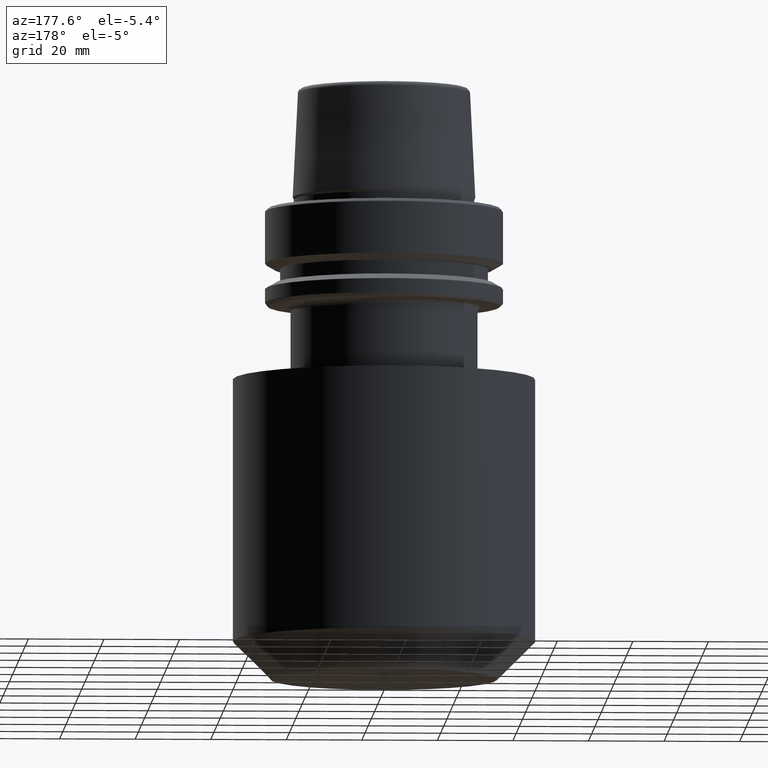
[diagram: clean part render]
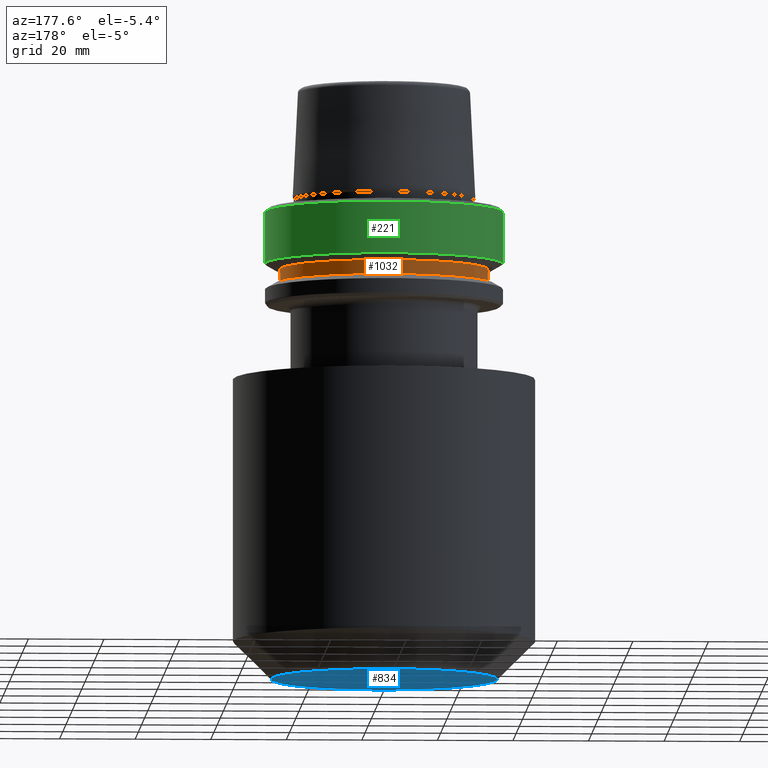
[diagram: same view with three faces highlighted in distinct colors, each labeled with its STEP entity id]
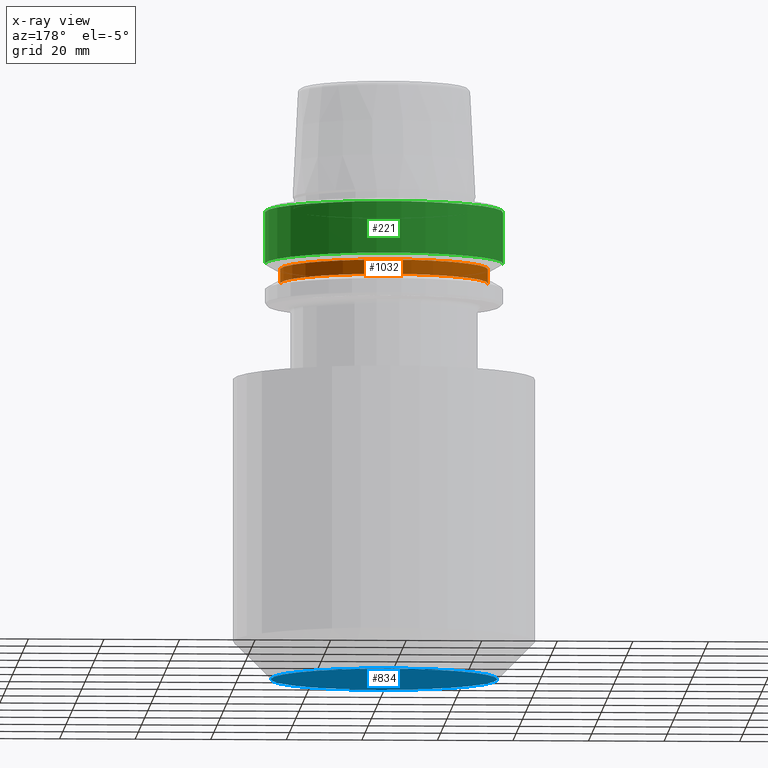
[diagram: x-ray of the same camera — body ghosted, the three highlighted faces saturated]
A machine part, auxiliary view with three faces highlighted in distinct colors.
The next image is the same camera in x-ray (body ghosted, the three faces saturated) — at least one of them is partly hidden behind the body in this view.
Their STEP definitions:

[orange] entity #1032 — the highlighted cylindrical surface (partial cylindrical patch) has radius 27.5 mm, axis along (-0, -0, 1).
#79 = EDGE_CURVE ( 'NONE', #987, #1146, #254, .T. ) ;
#170 = ORIENTED_EDGE ( 'NONE', *, *, #1051, .F. ) ;
#201 = DIRECTION ( 'NONE',  ( 1.000000000000000000, 0.0000000000000000000, 0.0000000000000000000 ) ) ;
#202 = CARTESIAN_POINT ( 'NONE',  ( 0.0000000000000000000, 0.0000000000000000000, -16.10000000000001600 ) ) ;
#226 = CARTESIAN_POINT ( 'NONE',  ( 27.49999999999999600, 0.0000000000000000000, -16.10000000000001600 ) ) ;
#243 = CARTESIAN_POINT ( 'NONE',  ( -27.49999999999999600, 3.367778697655220900E-015, -16.10000000000001600 ) ) ;
#254 = LINE ( 'NONE', #873, #1210 ) ;
#288 = DIRECTION ( 'NONE',  ( -0.0000000000000000000, -0.0000000000000000000, 1.000000000000000000 ) ) ;
#332 = EDGE_CURVE ( 'NONE', #952, #476, #1336, .T. ) ;
#476 = VERTEX_POINT ( 'NONE', #226 ) ;
#501 = CARTESIAN_POINT ( 'NONE',  ( 27.49999999999999600, 0.0000000000000000000, -19.90000000000001600 ) ) ;
#523 = FACE_OUTER_BOUND ( 'NONE', #543, .T. ) ;
#543 = EDGE_LOOP ( 'NONE', ( #690, #693, #170, #1025 ) ) ;
#579 = AXIS2_PLACEMENT_3D ( 'NONE', #719, #851, #1115 ) ;
#634 = CARTESIAN_POINT ( 'NONE',  ( -27.49999999999999600, 3.367778697655220900E-015, -19.90000000000001600 ) ) ;
#656 = CYLINDRICAL_SURFACE ( 'NONE', #881, 27.49999999999999600 ) ;
#670 = CIRCLE ( 'NONE', #884, 27.49999999999999600 ) ;
#675 = DIRECTION ( 'NONE',  ( 1.000000000000000000, 0.0000000000000000000, 0.0000000000000000000 ) ) ;
#690 = ORIENTED_EDGE ( 'NONE', *, *, #997, .T. ) ;
#693 = ORIENTED_EDGE ( 'NONE', *, *, #79, .T. ) ;
#694 = DIRECTION ( 'NONE',  ( -0.0000000000000000000, -0.0000000000000000000, 1.000000000000000000 ) ) ;
#719 = CARTESIAN_POINT ( 'NONE',  ( 0.0000000000000000000, 0.0000000000000000000, -19.90000000000001600 ) ) ;
#726 = CARTESIAN_POINT ( 'NONE',  ( 27.49999999999999600, 0.0000000000000000000, 78.96908074195309300 ) ) ;
#835 = DIRECTION ( 'NONE',  ( -0.0000000000000000000, -0.0000000000000000000, 1.000000000000000000 ) ) ;
#851 = DIRECTION ( 'NONE',  ( -0.0000000000000000000, -0.0000000000000000000, 1.000000000000000000 ) ) ;
#873 = CARTESIAN_POINT ( 'NONE',  ( -27.49999999999999600, 3.367778697655220900E-015, 78.96908074195309300 ) ) ;
#881 = AXIS2_PLACEMENT_3D ( 'NONE', #1208, #288, #675 ) ;
#884 = AXIS2_PLACEMENT_3D ( 'NONE', #202, #694, #201 ) ;
#934 = CIRCLE ( 'NONE', #579, 27.49999999999999600 ) ;
#952 = VERTEX_POINT ( 'NONE', #501 ) ;
#955 = VECTOR ( 'NONE', #835, 1000.000000000000000 ) ;
#974 = DIRECTION ( 'NONE',  ( -0.0000000000000000000, -0.0000000000000000000, 1.000000000000000000 ) ) ;
#987 = VERTEX_POINT ( 'NONE', #634 ) ;
#997 = EDGE_CURVE ( 'NONE', #952, #987, #934, .T. ) ;
#1025 = ORIENTED_EDGE ( 'NONE', *, *, #332, .F. ) ;
#1032 = ADVANCED_FACE ( 'NONE', ( #523 ), #656, .T. ) ;
#1051 = EDGE_CURVE ( 'NONE', #476, #1146, #670, .T. ) ;
#1115 = DIRECTION ( 'NONE',  ( 1.000000000000000000, 0.0000000000000000000, 0.0000000000000000000 ) ) ;
#1146 = VERTEX_POINT ( 'NONE', #243 ) ;
#1208 = CARTESIAN_POINT ( 'NONE',  ( 0.0000000000000000000, 0.0000000000000000000, 78.96908074195309300 ) ) ;
#1210 = VECTOR ( 'NONE', #974, 1000.000000000000000 ) ;
#1336 = LINE ( 'NONE', #726, #955 ) ;

[blue] entity #834 — the highlighted planar face has unit normal (0, -0, 1).
#20 = CIRCLE ( 'NONE', #1232, 30.00000000000000000 ) ;
#89 = CARTESIAN_POINT ( 'NONE',  ( -30.00000000000000000, 4.286263797015735700E-015, -125.0000000000000000 ) ) ;
#199 = VERTEX_POINT ( 'NONE', #89 ) ;
#294 = CARTESIAN_POINT ( 'NONE',  ( 0.0000000000000000000, 0.0000000000000000000, -125.0000000000000000 ) ) ;
#384 = PLANE ( 'NONE',  #631 ) ;
#420 = DIRECTION ( 'NONE',  ( 1.000000000000000000, 0.0000000000000000000, 0.0000000000000000000 ) ) ;
#534 = DIRECTION ( 'NONE',  ( 0.0000000000000000000, -0.0000000000000000000, 1.000000000000000000 ) ) ;
#587 = DIRECTION ( 'NONE',  ( -0.0000000000000000000, -0.0000000000000000000, 1.000000000000000000 ) ) ;
#589 = VERTEX_POINT ( 'NONE', #1109 ) ;
#629 = CIRCLE ( 'NONE', #1212, 30.00000000000000000 ) ;
#631 = AXIS2_PLACEMENT_3D ( 'NONE', #1017, #534, #420 ) ;
#682 = EDGE_CURVE ( 'NONE', #589, #199, #20, .T. ) ;
#756 = DIRECTION ( 'NONE',  ( 1.000000000000000000, 0.0000000000000000000, 0.0000000000000000000 ) ) ;
#762 = ORIENTED_EDGE ( 'NONE', *, *, #682, .F. ) ;
#787 = EDGE_CURVE ( 'NONE', #199, #589, #629, .T. ) ;
#834 = ADVANCED_FACE ( 'NONE', ( #1184 ), #384, .F. ) ;
#1016 = DIRECTION ( 'NONE',  ( -0.0000000000000000000, -0.0000000000000000000, 1.000000000000000000 ) ) ;
#1017 = CARTESIAN_POINT ( 'NONE',  ( 0.0000000000000000000, 0.0000000000000000000, -125.0000000000000000 ) ) ;
#1109 = CARTESIAN_POINT ( 'NONE',  ( 30.00000000000000000, 0.0000000000000000000, -125.0000000000000000 ) ) ;
#1110 = ORIENTED_EDGE ( 'NONE', *, *, #787, .F. ) ;
#1130 = EDGE_LOOP ( 'NONE', ( #762, #1110 ) ) ;
#1184 = FACE_OUTER_BOUND ( 'NONE', #1130, .T. ) ;
#1212 = AXIS2_PLACEMENT_3D ( 'NONE', #294, #1016, #756 ) ;
#1232 = AXIS2_PLACEMENT_3D ( 'NONE', #1264, #587, #1272 ) ;
#1264 = CARTESIAN_POINT ( 'NONE',  ( 0.0000000000000000000, 0.0000000000000000000, -125.0000000000000000 ) ) ;
#1272 = DIRECTION ( 'NONE',  ( 1.000000000000000000, 0.0000000000000000000, 0.0000000000000000000 ) ) ;

[green] entity #221 — the highlighted cylindrical surface (partial cylindrical patch) has radius 31.5 mm, axis along (-0, -0, 1).
#43 = DIRECTION ( 'NONE',  ( -0.0000000000000000000, -0.0000000000000000000, 1.000000000000000000 ) ) ;
#132 = EDGE_CURVE ( 'NONE', #1227, #931, #876, .T. ) ;
#169 = CYLINDRICAL_SURFACE ( 'NONE', #1085, 31.50000000000000000 ) ;
#175 = CARTESIAN_POINT ( 'NONE',  ( 31.50000000000000000, 0.0000000000000000000, -14.62250092524070100 ) ) ;
#207 = EDGE_CURVE ( 'NONE', #1227, #548, #291, .T. ) ;
#211 = DIRECTION ( 'NONE',  ( 1.000000000000000000, 0.0000000000000000000, 0.0000000000000000000 ) ) ;
#221 = ADVANCED_FACE ( 'NONE', ( #782 ), #169, .T. ) ;
#236 = CARTESIAN_POINT ( 'NONE',  ( -31.50000000000000000, 3.857637417314162700E-015, 78.96908074195309300 ) ) ;
#242 = DIRECTION ( 'NONE',  ( -0.0000000000000000000, -0.0000000000000000000, 1.000000000000000000 ) ) ;
#265 = ORIENTED_EDGE ( 'NONE', *, *, #207, .F. ) ;
#291 = LINE ( 'NONE', #993, #832 ) ;
#396 = DIRECTION ( 'NONE',  ( -0.0000000000000000000, -0.0000000000000000000, 1.000000000000000000 ) ) ;
#425 = DIRECTION ( 'NONE',  ( 1.000000000000000000, 0.0000000000000000000, 0.0000000000000000000 ) ) ;
#427 = VERTEX_POINT ( 'NONE', #1221 ) ;
#460 = DIRECTION ( 'NONE',  ( -0.0000000000000000000, -0.0000000000000000000, 1.000000000000000000 ) ) ;
#481 = AXIS2_PLACEMENT_3D ( 'NONE', #893, #242, #425 ) ;
#518 = CARTESIAN_POINT ( 'NONE',  ( 0.0000000000000000000, 0.0000000000000000000, 78.96908074195309300 ) ) ;
#548 = VERTEX_POINT ( 'NONE', #1062 ) ;
#608 = EDGE_CURVE ( 'NONE', #931, #427, #661, .T. ) ;
#644 = CIRCLE ( 'NONE', #481, 31.50000000000000700 ) ;
#661 = LINE ( 'NONE', #236, #1028 ) ;
#740 = DIRECTION ( 'NONE',  ( 1.000000000000000000, 0.0000000000000000000, 0.0000000000000000000 ) ) ;
#782 = FACE_OUTER_BOUND ( 'NONE', #793, .T. ) ;
#793 = EDGE_LOOP ( 'NONE', ( #1333, #844, #1225, #265 ) ) ;
#794 = AXIS2_PLACEMENT_3D ( 'NONE', #816, #460, #211 ) ;
#816 = CARTESIAN_POINT ( 'NONE',  ( 0.0000000000000000000, 0.0000000000000000000, -14.62250092524070100 ) ) ;
#832 = VECTOR ( 'NONE', #1249, 1000.000000000000000 ) ;
#844 = ORIENTED_EDGE ( 'NONE', *, *, #608, .T. ) ;
#852 = EDGE_CURVE ( 'NONE', #548, #427, #644, .T. ) ;
#876 = CIRCLE ( 'NONE', #794, 31.50000000000000000 ) ;
#893 = CARTESIAN_POINT ( 'NONE',  ( 0.0000000000000000000, 0.0000000000000000000, -0.9656854249492363700 ) ) ;
#931 = VERTEX_POINT ( 'NONE', #1080 ) ;
#993 = CARTESIAN_POINT ( 'NONE',  ( 31.50000000000000000, 0.0000000000000000000, 78.96908074195309300 ) ) ;
#1028 = VECTOR ( 'NONE', #396, 1000.000000000000000 ) ;
#1062 = CARTESIAN_POINT ( 'NONE',  ( 31.50000000000000700, 0.0000000000000000000, -0.9656854249492363700 ) ) ;
#1080 = CARTESIAN_POINT ( 'NONE',  ( -31.50000000000000000, 3.857637417314162700E-015, -14.62250092524070100 ) ) ;
#1085 = AXIS2_PLACEMENT_3D ( 'NONE', #518, #43, #740 ) ;
#1221 = CARTESIAN_POINT ( 'NONE',  ( -31.50000000000000700, 3.857637417314163500E-015, -0.9656854249492363700 ) ) ;
#1225 = ORIENTED_EDGE ( 'NONE', *, *, #852, .F. ) ;
#1227 = VERTEX_POINT ( 'NONE', #175 ) ;
#1249 = DIRECTION ( 'NONE',  ( -0.0000000000000000000, -0.0000000000000000000, 1.000000000000000000 ) ) ;
#1333 = ORIENTED_EDGE ( 'NONE', *, *, #132, .T. ) ;